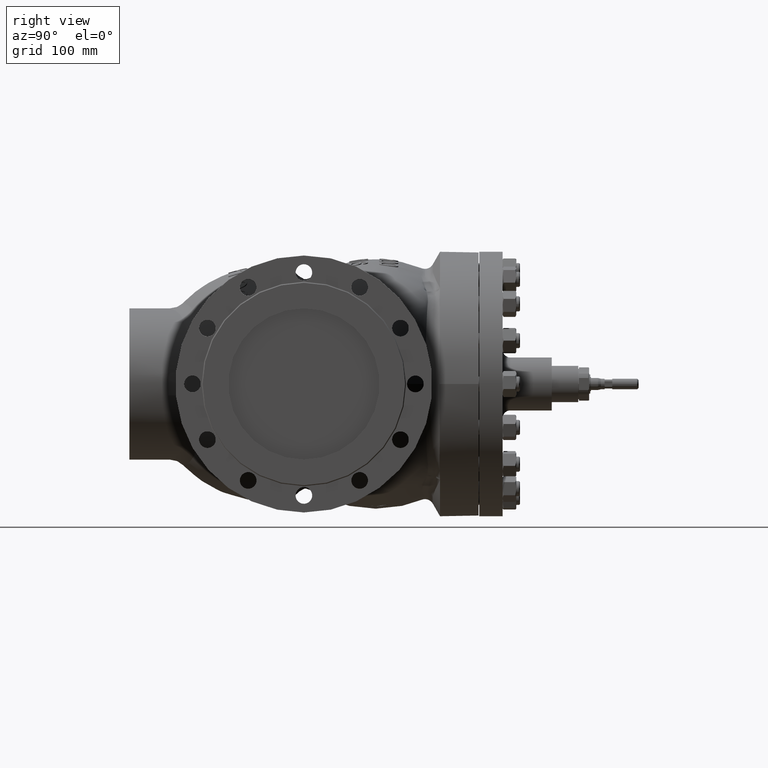
[diagram: clean part render]
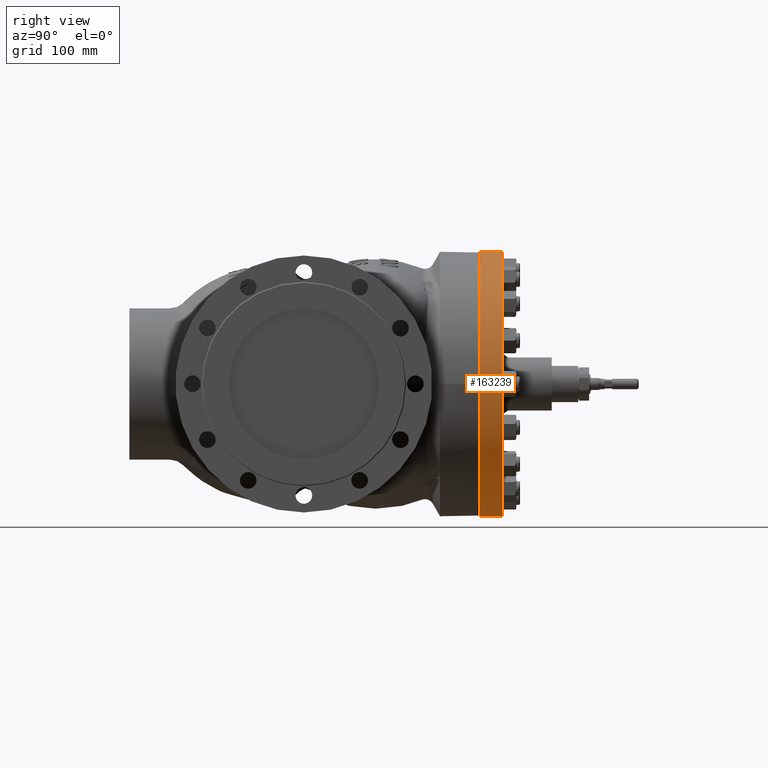
[diagram: same view with one face highlighted and labeled with its STEP entity id]
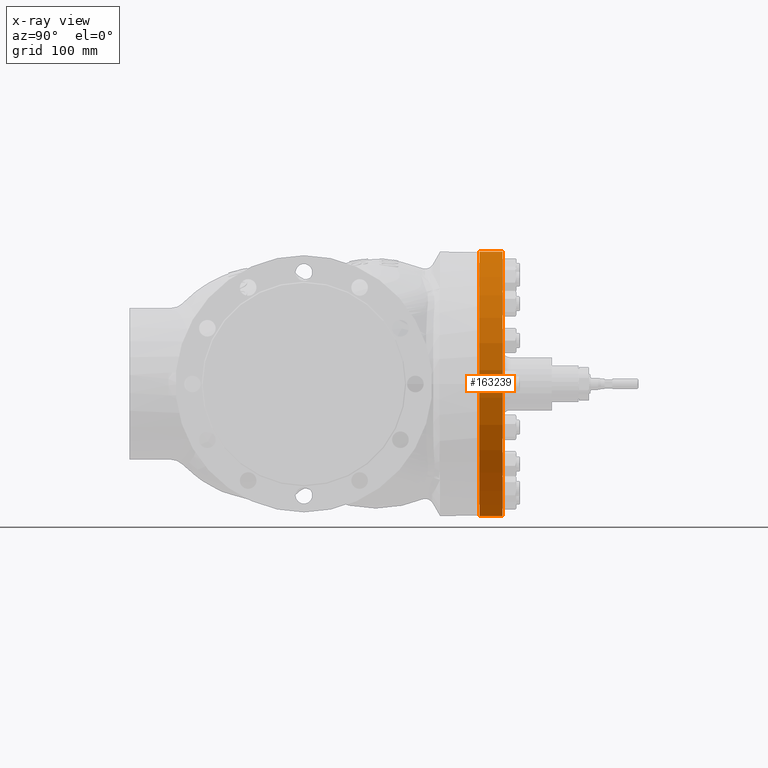
[diagram: x-ray of the same camera — body ghosted, the highlighted face saturated]
A machine part, right view. The second image highlights one B-rep face of the part: STEP entity #163239.
The next image is the same camera in x-ray: the body ghosted, the highlighted face saturated — about 0% of this face is hidden behind the body in this view.
In plain terms, the highlighted cylindrical surface (partial cylindrical patch) has radius 175 mm, axis along (-0, 1, 0).
Its self-contained STEP definition (entity closure, byte-faithful):
#4603 = EDGE_CURVE ( 'NONE', #64896, #280349, #124230, .T. ) ;
#20274 = ORIENTED_EDGE ( 'NONE', *, *, #4603, .T. ) ;
#22429 = DIRECTION ( 'NONE',  ( -1.423228477904675500E-016, 1.000000000000000000, 4.953303372370682800E-033 ) ) ;
#32391 = DIRECTION ( 'NONE',  ( -1.117161918529063600E-015, 0.0000000000000000000, 1.000000000000000000 ) ) ;
#35878 = DIRECTION ( 'NONE',  ( -1.423228477904675500E-016, 1.000000000000000000, 4.953303372370682800E-033 ) ) ;
#46059 = CARTESIAN_POINT ( 'NONE',  ( 3.062313296384897600E-013, 263.0000000000000600, -175.0000000000000000 ) ) ;
#51372 = CARTESIAN_POINT ( 'NONE',  ( 2.897930407186906800E-013, 363.0000000000000600, -175.0000000000000000 ) ) ;
#64896 = VERTEX_POINT ( 'NONE', #71583 ) ;
#69832 = CIRCLE ( 'NONE', #283379, 175.0000000000000000 ) ;
#71583 = CARTESIAN_POINT ( 'NONE',  ( 3.062313296384897600E-013, 232.0000000000000300, -175.0000000000000000 ) ) ;
#97952 = DIRECTION ( 'NONE',  ( -1.423228477904675500E-016, 1.000000000000000000, 4.953303372370682800E-033 ) ) ;
#100498 = CARTESIAN_POINT ( 'NONE',  ( 8.709067077007265300E-014, 263.0000000000000600, 1.387778780781445700E-014 ) ) ;
#101451 = CARTESIAN_POINT ( 'NONE',  ( -1.226449497515602400E-013, 363.0000000000000600, 175.0000000000000000 ) ) ;
#105380 = CARTESIAN_POINT ( 'NONE',  ( -1.040006566910089900E-013, 232.0000000000000300, 175.0000000000000000 ) ) ;
#116883 = DIRECTION ( 'NONE',  ( -1.423228477904675500E-016, 1.000000000000000000, 4.953303372370682800E-033 ) ) ;
#122637 = DIRECTION ( 'NONE',  ( -1.117161918529063600E-015, 0.0000000000000000000, 1.000000000000000000 ) ) ;
#124230 = LINE ( 'NONE', #51372, #175917 ) ;
#146397 = VECTOR ( 'NONE', #35878, 1000.000000000000000 ) ;
#154464 = CARTESIAN_POINT ( 'NONE',  ( 9.150267905157715700E-014, 232.0000000000000300, 1.387778780781445700E-014 ) ) ;
#161177 = ORIENTED_EDGE ( 'NONE', *, *, #285004, .T. ) ;
#163239 = ADVANCED_FACE ( 'NONE', ( #251775 ), #244830, .T. ) ;
#175917 = VECTOR ( 'NONE', #116883, 1000.000000000000000 ) ;
#176304 = EDGE_LOOP ( 'NONE', ( #161177, #20274, #183346, #213964 ) ) ;
#176681 = DIRECTION ( 'NONE',  ( -1.117161918529063600E-015, 0.0000000000000000000, 1.000000000000000000 ) ) ;
#183346 = ORIENTED_EDGE ( 'NONE', *, *, #285928, .F. ) ;
#187612 = CARTESIAN_POINT ( 'NONE',  ( 7.285838599102589800E-014, 363.0000000000000600, 1.387778780781445700E-014 ) ) ;
#191078 = VERTEX_POINT ( 'NONE', #105380 ) ;
#205087 = LINE ( 'NONE', #101451, #146397 ) ;
#208386 = VERTEX_POINT ( 'NONE', #252150 ) ;
#213964 = ORIENTED_EDGE ( 'NONE', *, *, #277090, .F. ) ;
#244830 = CYLINDRICAL_SURFACE ( 'NONE', #266507, 175.0000000000000000 ) ;
#248333 = AXIS2_PLACEMENT_3D ( 'NONE', #100498, #254735, #122637 ) ;
#249096 = CIRCLE ( 'NONE', #248333, 175.0000000000000000 ) ;
#251775 = FACE_OUTER_BOUND ( 'NONE', #176304, .T. ) ;
#252150 = CARTESIAN_POINT ( 'NONE',  ( -1.084126649725134800E-013, 263.0000000000000600, 175.0000000000000000 ) ) ;
#254735 = DIRECTION ( 'NONE',  ( -1.423228477904675500E-016, 1.000000000000000000, 4.953303372370682800E-033 ) ) ;
#266507 = AXIS2_PLACEMENT_3D ( 'NONE', #187612, #97952, #32391 ) ;
#277090 = EDGE_CURVE ( 'NONE', #191078, #208386, #205087, .T. ) ;
#280349 = VERTEX_POINT ( 'NONE', #46059 ) ;
#283379 = AXIS2_PLACEMENT_3D ( 'NONE', #154464, #22429, #176681 ) ;
#285004 = EDGE_CURVE ( 'NONE', #191078, #64896, #69832, .T. ) ;
#285928 = EDGE_CURVE ( 'NONE', #208386, #280349, #249096, .T. ) ;